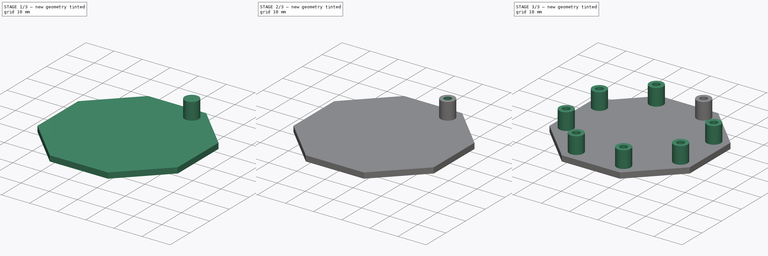
[diagram: build sequence overview — one tinted view per stage of 3, left to right]
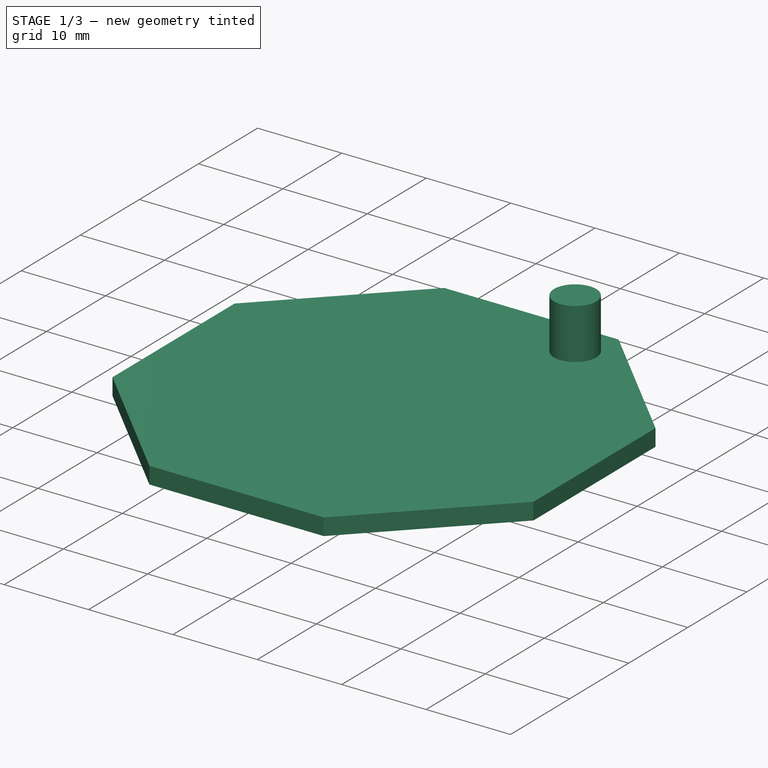
[diagram: stage 1 of 3 — iso view after this stage's code; geometry added in this stage tinted green]
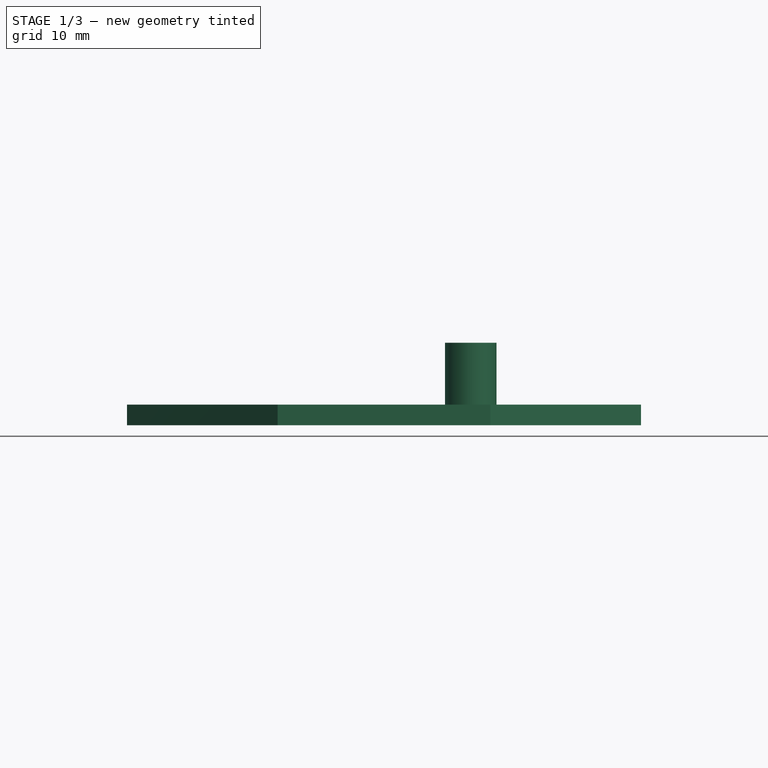
[diagram: stage 1 of 3 — front view after this stage's code; geometry added in this stage tinted green]
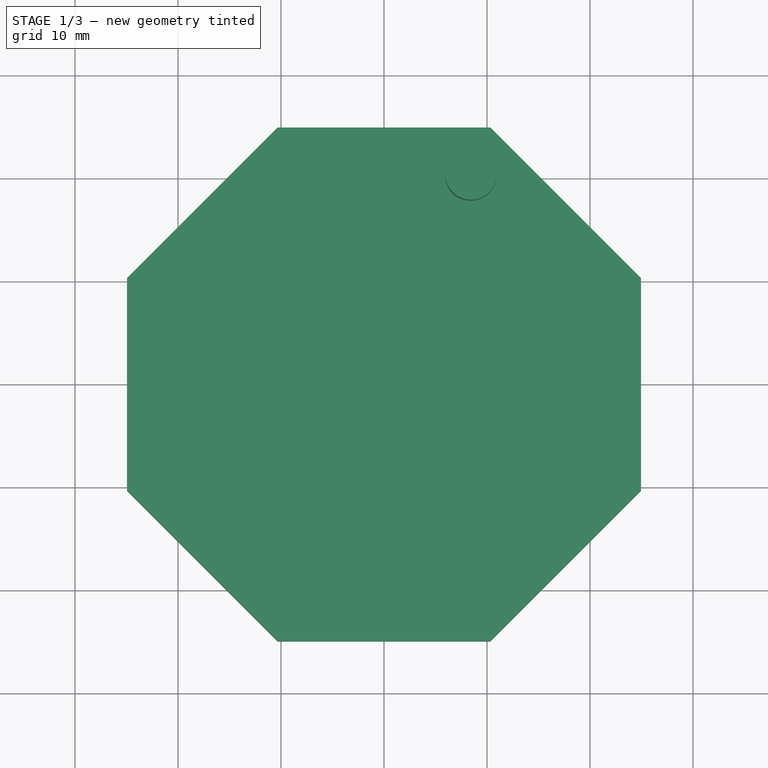
[diagram: stage 1 of 3 — top view after this stage's code; geometry added in this stage tinted green]
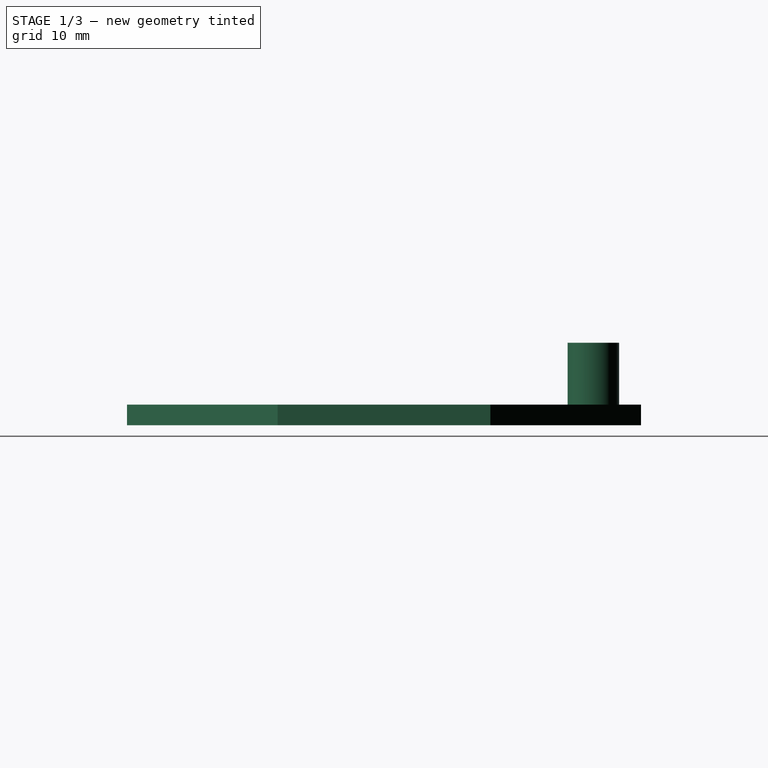
[diagram: stage 1 of 3 — right view after this stage's code; geometry added in this stage tinted green]
FCSTD DOCUMENT  (FreeCAD 0.20R)
Label: shell
License: All rights reserved
LicenseURL: http://en.wikipedia.org/wiki/All_rights_reserved
objects: Sketcher::SketchObject×3, PartDesign::Pad×2, PartDesign::PolarPattern×2, Spreadsheet::Sheet×1, PartDesign::Pocket×1, PartDesign::Body×1
note: 12 computed .brp shape members not serialized (recipe doc carries the construction recipe); baked Part::Feature solids carry a one-line shape summary decoded from their .brp

FEATURE [Sketcher::SketchObject] Sketch  label="BasePlate"
  FullyConstrained = true
  MapMode = 5
  Support = -> [XY_Plane]
  expr: Constraints[25] = Spreadsheet.outer_radius
  sketch-geometry (9):
    g0: LineSegment StartX=24.9447 StartY=-10.3325 StartZ=0 EndX=24.9447 EndY=10.3325 EndZ=0
    g1: LineSegment StartX=24.9447 StartY=10.3325 StartZ=0 EndX=10.3325 EndY=24.9447 EndZ=0
    g2: LineSegment StartX=10.3325 StartY=24.9447 StartZ=0 EndX=-10.3325 EndY=24.9447 EndZ=0
    g3: LineSegment StartX=-10.3325 StartY=24.9447 StartZ=0 EndX=-24.9447 EndY=10.3325 EndZ=0
    g4: LineSegment StartX=-24.9447 StartY=10.3325 StartZ=0 EndX=-24.9447 EndY=-10.3325 EndZ=0
    g5: LineSegment StartX=-24.9447 StartY=-10.3325 StartZ=0 EndX=-10.3325 EndY=-24.9447 EndZ=0
    g6: LineSegment StartX=-10.3325 StartY=-24.9447 StartZ=0 EndX=10.3325 EndY=-24.9447 EndZ=0
    g7: LineSegment StartX=10.3325 StartY=-24.9447 StartZ=0 EndX=24.9447 EndY=-10.3325 EndZ=0
    g8: Circle CenterX=0 CenterY=0 CenterZ=0 NormalX=0 NormalY=0 NormalZ=1 AngleXU=0 Radius=27
  constraints (20):
    c: Coincident(g0,g1)
    c: Coincident(g1,g2)
    c: Coincident(g2,g3)
    c: Coincident(g3,g4)
    c: Coincident(g4,g5)
    c: Coincident(g5,g6)
    c: Coincident(g6,g7)
    c: Coincident(g7,g0)
    c: Equal(g0, g1-g7) x7
    c: PointOnObject(g0,g8)
    c: PointOnObject(g1,g8)
    c: PointOnObject(g2,g8)
    c: PointOnObject(g3,g8)
    c: PointOnObject(g4,g8)
    c: PointOnObject(g5,g8)
    c: PointOnObject(g6,g8)
    c: PointOnObject(g7,g8)
    c: Coincident(g8,g-1)
    c: Horizontal(g2)
    c: Radius(g8) = 27
FEATURE [Spreadsheet::Sheet] Spreadsheet
  cells = A1=Outer Radius; B1(outer_radius)==27mm; A2=PCB Radius; B2(pcb_radius)==25mm; A3=Hole Radius from Center; B3(hole_radius_from_center)==22mm; A4=Hole Diameter; B4(hole_diameter)==2.5mm; A5=Cylinder Diameter; B5(cylinder_diameter)==5mm; A7=Base Height; B7(base_height)==2mm; A8=Cylinder Height; B8(cylinder_height)==6mm
FEATURE [PartDesign::Pad] Pad
  Direction = (0,0,1)
  Length = 2
  Length2 = 10
  Profile = -> Sketch
  ReferenceAxis = -> Sketch [N_Axis]
  Type = 0
  expr: Length = Spreadsheet.base_height
FEATURE [Sketcher::SketchObject] Sketch001  label="Cylinder"
  FullyConstrained = true
  MapMode = 5
  Placement = pos=(0,0,2) rot=(0,0,1;0rad)
  Support = -> [Pad]
  expr: Constraints[25] = Spreadsheet.hole_radius_from_center
  expr: Constraints[27] = Spreadsheet.cylinder_diameter
  sketch-geometry (10):
    g0: LineSegment StartX=20.3253 StartY=-8.41904 StartZ=0 EndX=20.3253 EndY=8.41904 EndZ=0
    g1: LineSegment StartX=20.3253 StartY=8.41904 StartZ=0 EndX=8.41904 EndY=20.3253 EndZ=0
    g2: LineSegment StartX=8.41904 StartY=20.3253 StartZ=0 EndX=-8.41904 EndY=20.3253 EndZ=0
    g3: LineSegment StartX=-8.41904 StartY=20.3253 StartZ=0 EndX=-20.3253 EndY=8.41904 EndZ=0
    g4: LineSegment StartX=-20.3253 StartY=8.41904 StartZ=0 EndX=-20.3253 EndY=-8.41904 EndZ=0
    g5: LineSegment StartX=-20.3253 StartY=-8.41904 StartZ=0 EndX=-8.41904 EndY=-20.3253 EndZ=0
    g6: LineSegment StartX=-8.41904 StartY=-20.3253 StartZ=0 EndX=8.41904 EndY=-20.3253 EndZ=0
    g7: LineSegment StartX=8.41904 StartY=-20.3253 StartZ=0 EndX=20.3253 EndY=-8.41904 EndZ=0
    g8: Circle CenterX=0 CenterY=0 CenterZ=0 NormalX=0 NormalY=0 NormalZ=1 AngleXU=0 Radius=22
    g9: Circle CenterX=8.41904 CenterY=20.3253 CenterZ=0 NormalX=0 NormalY=0 NormalZ=1 AngleXU=0 Radius=2.5
  constraints (22):
    c: Coincident(g0,g1)
    c: Coincident(g1,g2)
    c: Coincident(g2,g3)
    c: Coincident(g3,g4)
    c: Coincident(g4,g5)
    c: Coincident(g5,g6)
    c: Coincident(g6,g7)
    c: Coincident(g7,g0)
    c: Equal(g0, g1-g7) x7
    c: PointOnObject(g0,g8)
    c: PointOnObject(g1,g8)
    c: PointOnObject(g2,g8)
    c: PointOnObject(g3,g8)
    c: PointOnObject(g4,g8)
    c: PointOnObject(g5,g8)
    c: PointOnObject(g6,g8)
    c: PointOnObject(g7,g8)
    c: Coincident(g8,g-1)
    c: Horizontal(g2)
    c: Radius(g8) = 22
    c: Coincident(g9,g1)
    c: Diameter(g9) = 5
FEATURE [PartDesign::Pad] Pad001  label="PadCylinder"
  BaseFeature = -> Pad
  Direction = (0,0,1)
  Length = 6
  Length2 = 10
  Profile = -> Sketch001
  ReferenceAxis = -> Sketch001 [N_Axis]
  Type = 0
  expr: Length = Spreadsheet.cylinder_height
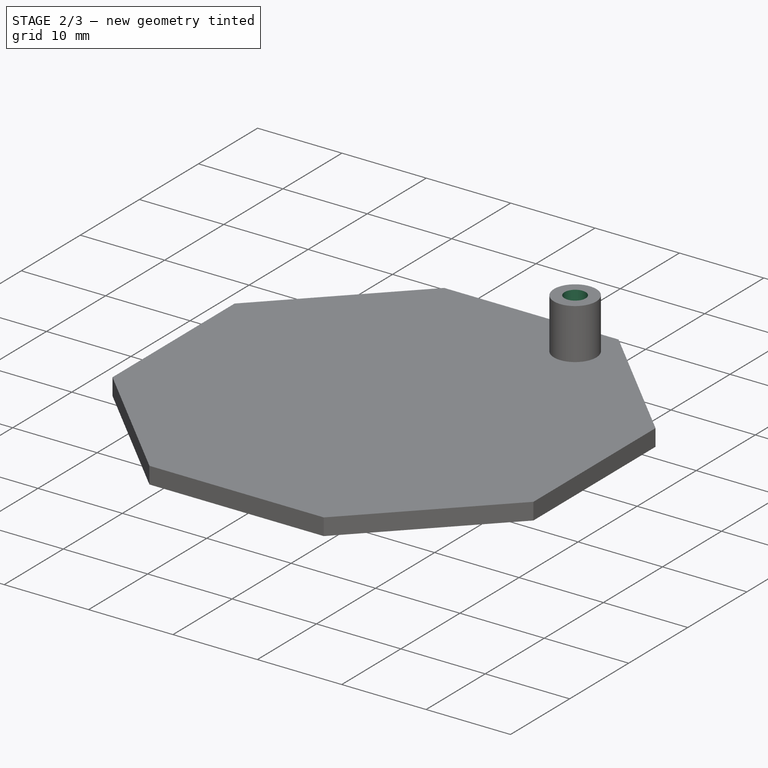
[diagram: stage 2 of 3 — iso view after this stage's code; geometry added in this stage tinted green]
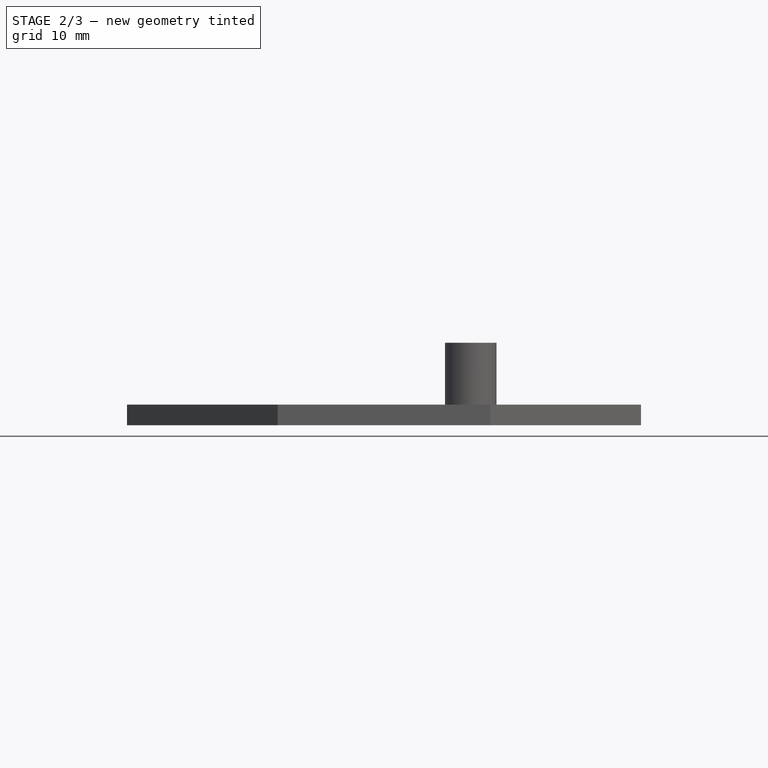
[diagram: stage 2 of 3 — front view after this stage's code; geometry added in this stage tinted green]
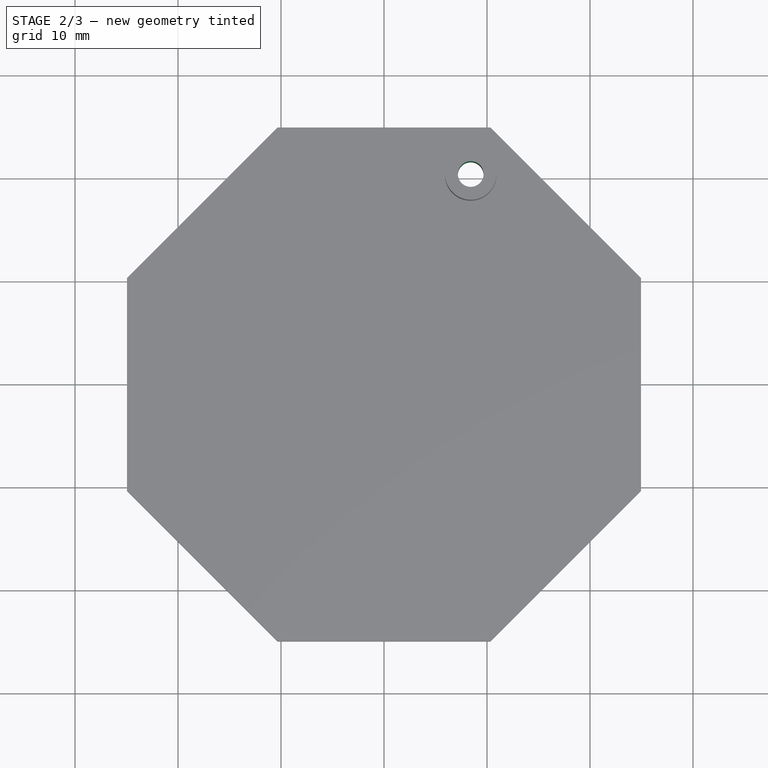
[diagram: stage 2 of 3 — top view after this stage's code; geometry added in this stage tinted green]
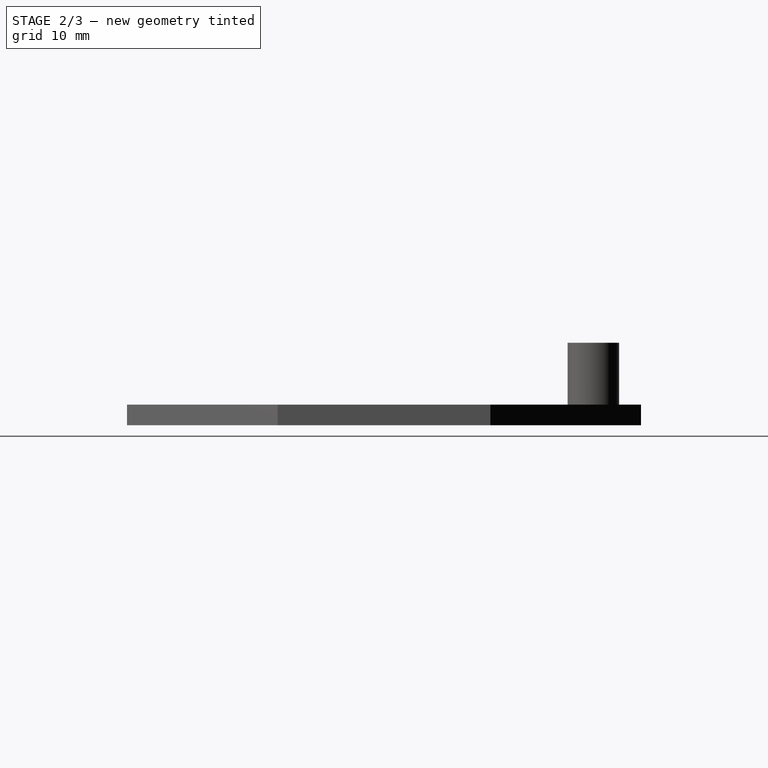
[diagram: stage 2 of 3 — right view after this stage's code; geometry added in this stage tinted green]
FEATURE [Sketcher::SketchObject] Sketch002  label="Hole"
  ExternalGeometry = -> [Pad001]
  FullyConstrained = true
  MapMode = 5
  Placement = pos=(0,0,8) rot=(0,0,1;0rad)
  Support = -> [Pad001]
  expr: Constraints[1] = Spreadsheet.hole_diameter
  sketch-geometry (1):
    g0: Circle CenterX=8.41904 CenterY=20.3253 CenterZ=0 NormalX=0 NormalY=0 NormalZ=1 AngleXU=0 Radius=1.25
  constraints (2):
    c: Coincident(g0,g-3)
    c: Diameter(g0) = 2.5
FEATURE [PartDesign::Pocket] Pocket  label="PocketHole"
  BaseFeature = -> Pad001
  Direction = (0,0,-1)
  Length = 8
  Length2 = 5
  Profile = -> Sketch002
  ReferenceAxis = -> Sketch002 [N_Axis]
  Type = 0
  expr: Length = Spreadsheet.base_height + Spreadsheet.cylinder_height
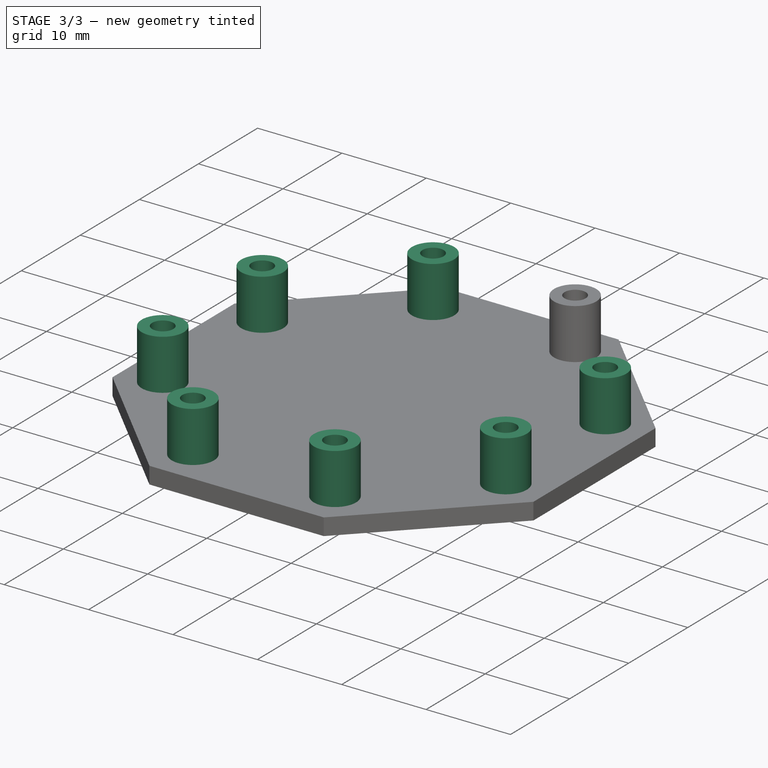
[diagram: stage 3 of 3 — iso view after this stage's code; geometry added in this stage tinted green]
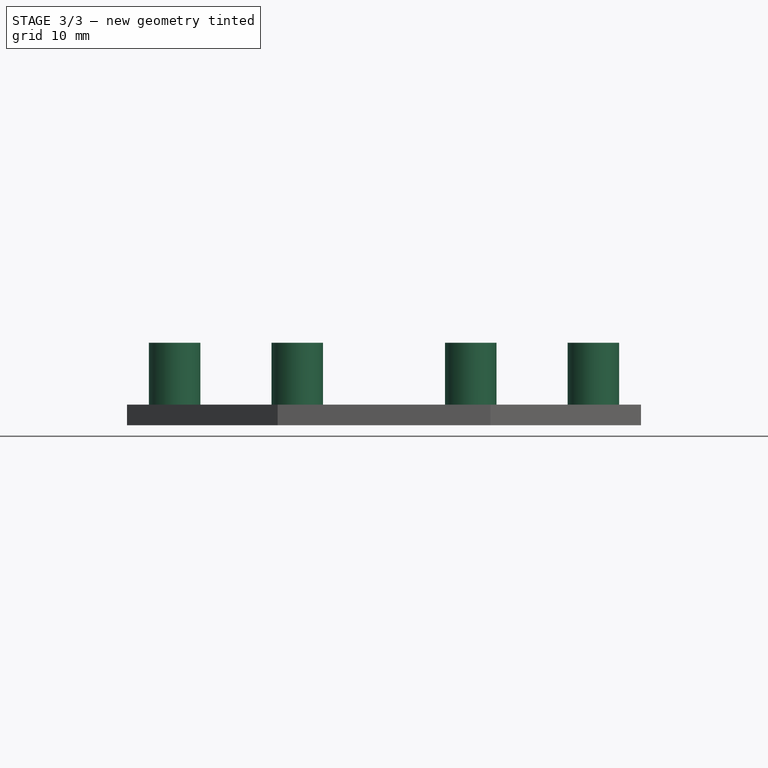
[diagram: stage 3 of 3 — front view after this stage's code; geometry added in this stage tinted green]
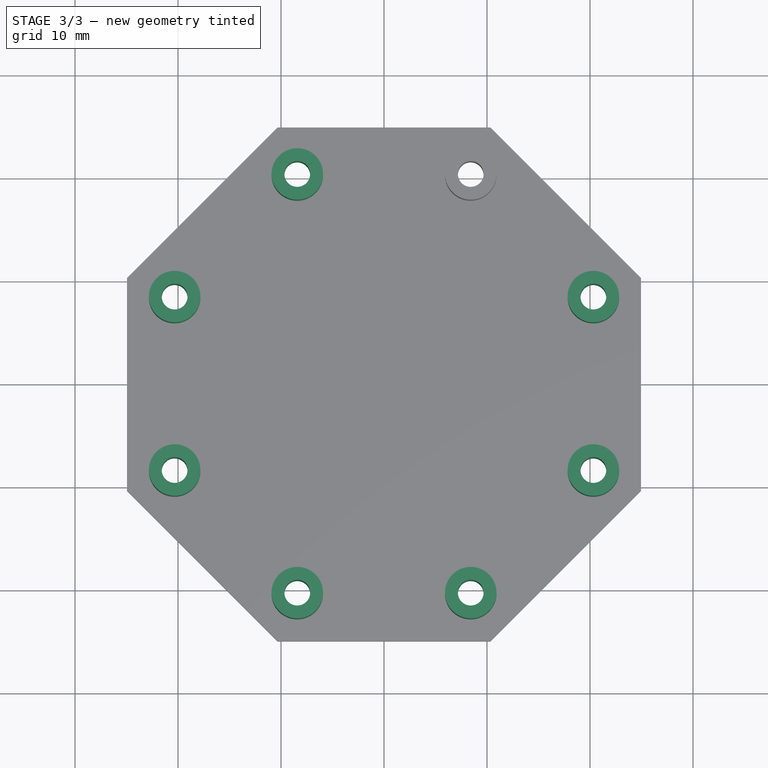
[diagram: stage 3 of 3 — top view after this stage's code; geometry added in this stage tinted green]
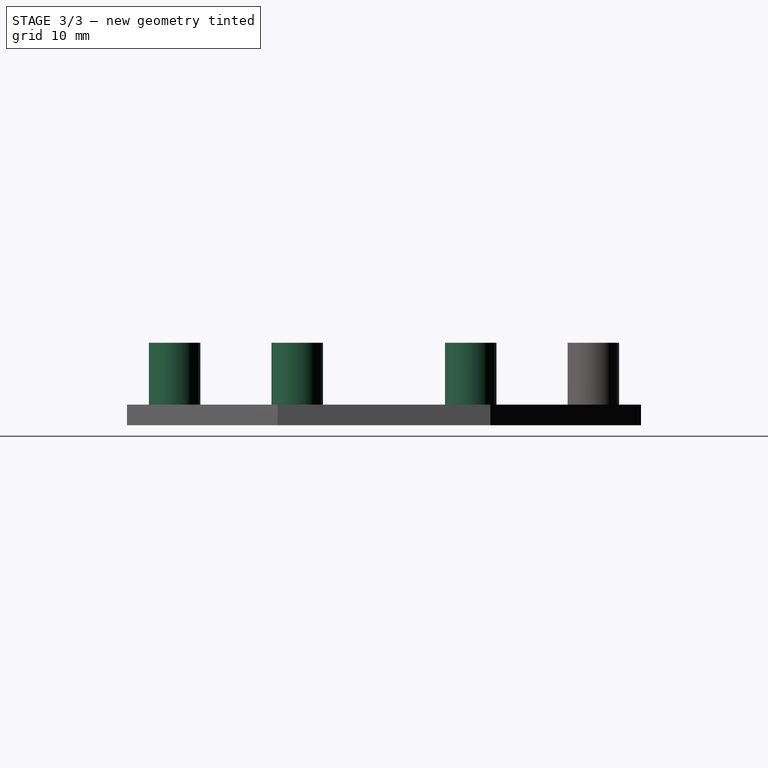
[diagram: stage 3 of 3 — right view after this stage's code; geometry added in this stage tinted green]
FEATURE [PartDesign::PolarPattern] PolarPattern  label="PolarPatternCylinder"
  Angle = 360
  Axis = -> Sketch001 [N_Axis]
  BaseFeature = -> Pocket
  Occurrences = 8
  Originals = -> [Pad001]
FEATURE [PartDesign::PolarPattern] PolarPattern001  label="PolarPatternHole"
  Angle = 360
  Axis = -> Sketch002 [N_Axis]
  BaseFeature = -> PolarPattern
  Occurrences = 8
  Originals = -> [Pocket]
FEATURE [PartDesign::Body] Body
  Group = -> [Sketch,Pad,Sketch001,Pad001,Sketch002,Pocket,PolarPattern,PolarPattern001]
  Origin = -> Origin
  Tip = -> PolarPattern001
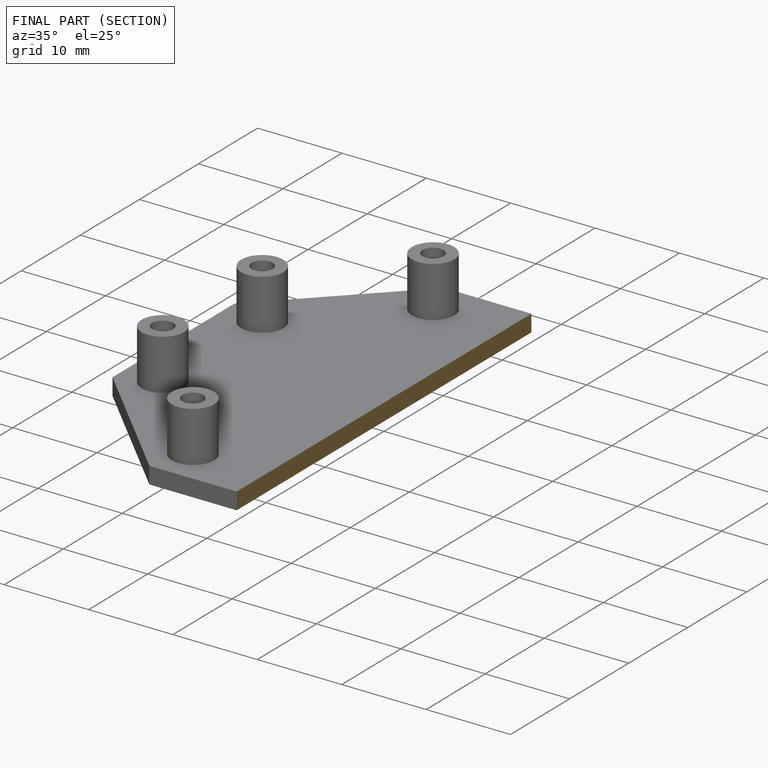
[diagram: finished part — half-section view (interior)]
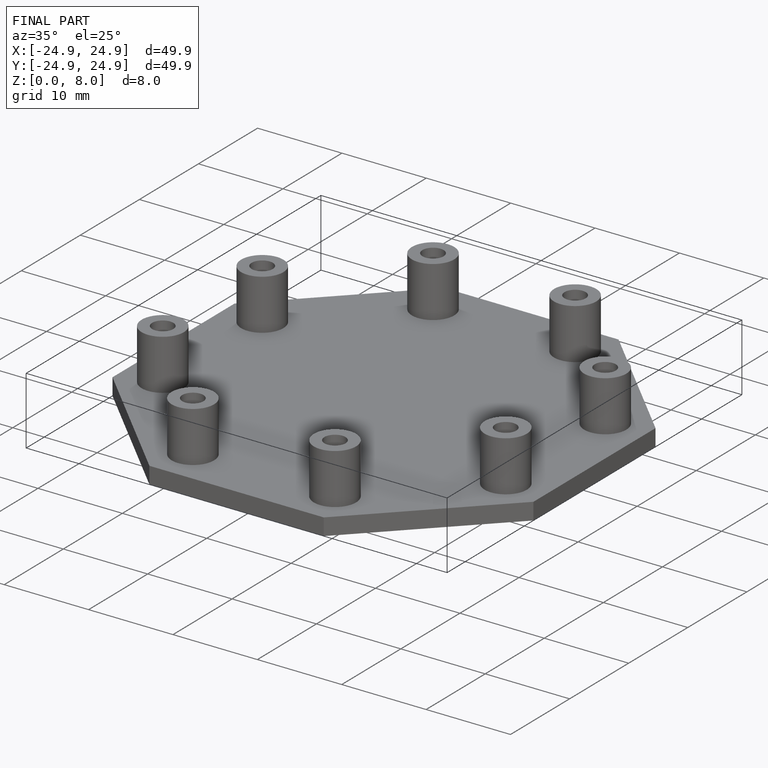
[diagram: finished part — iso view with bounding-box wireframe]
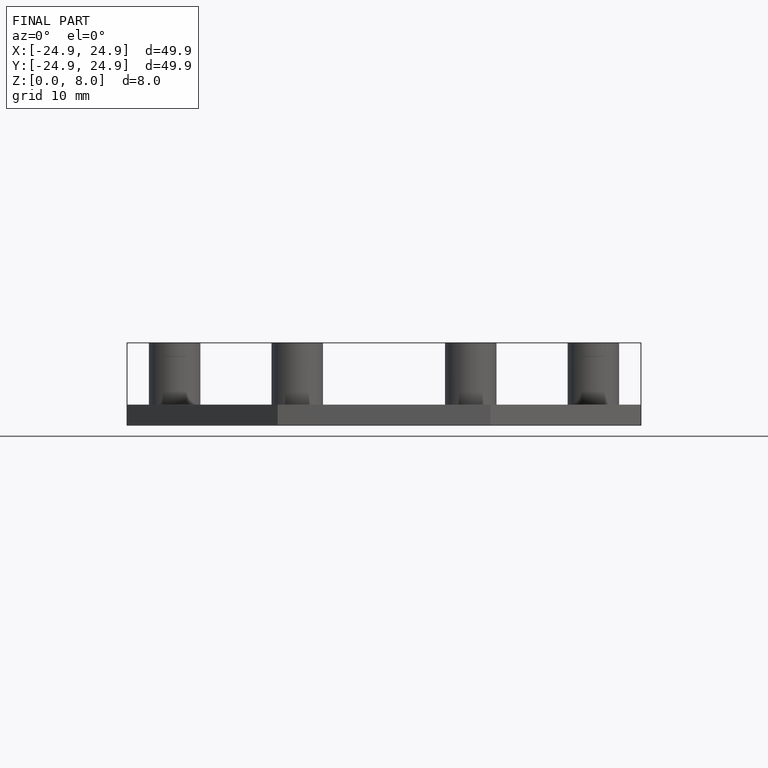
[diagram: finished part — front view with bounding-box wireframe]
